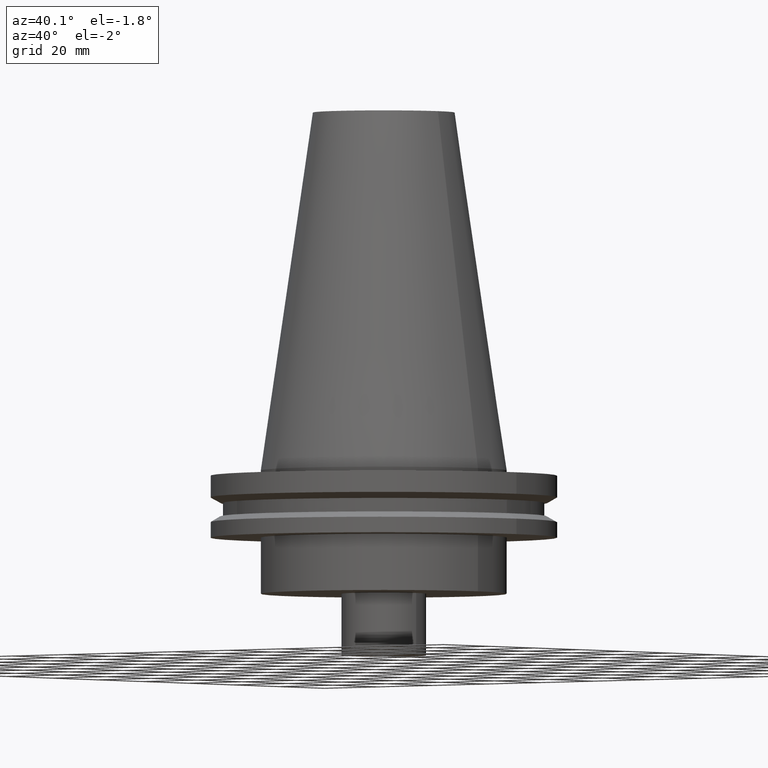
[diagram: clean part render]
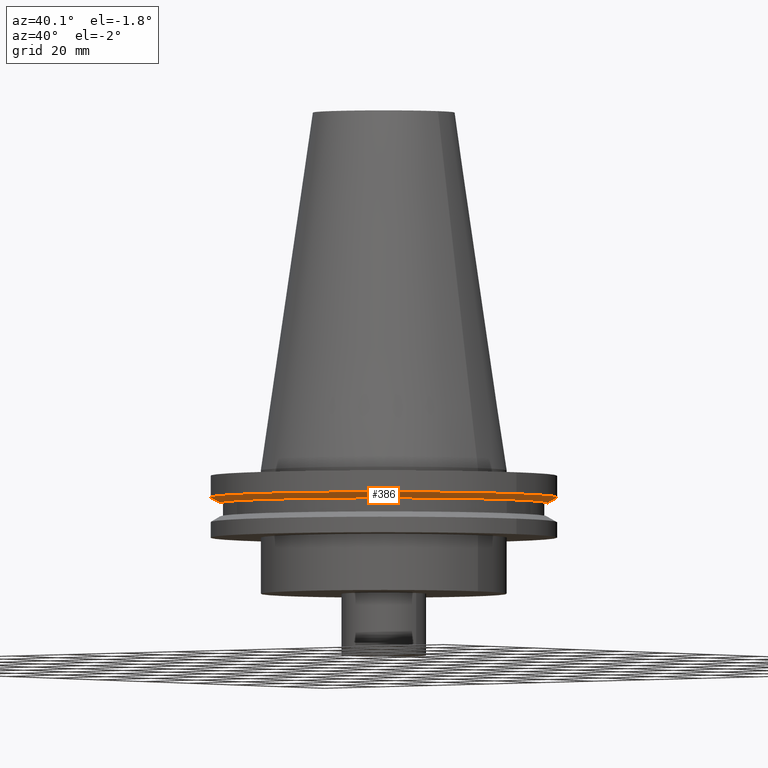
[diagram: same view with one face highlighted and labeled with its STEP entity id]
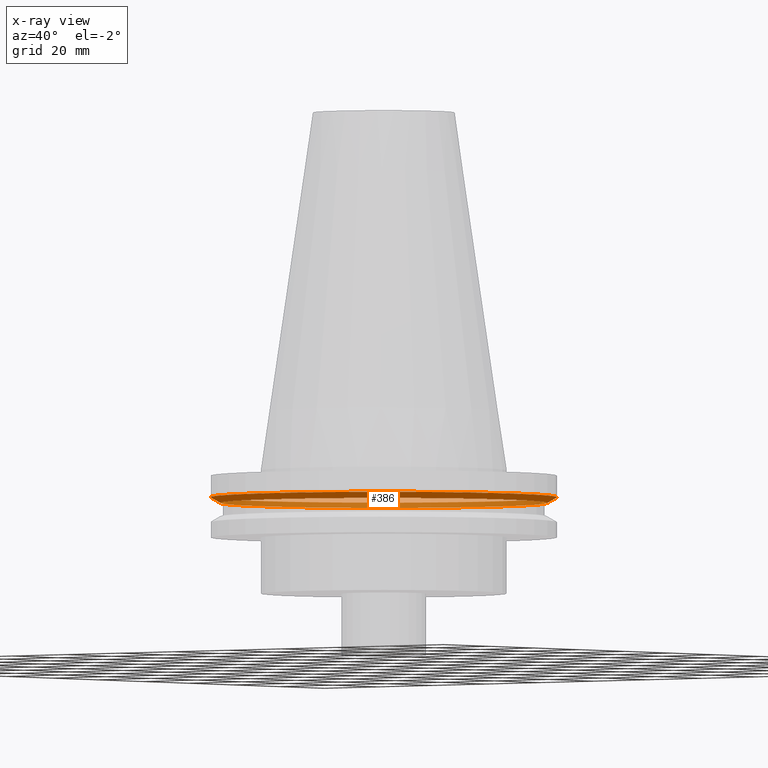
[diagram: x-ray of the same camera — body ghosted, the highlighted face saturated]
A machine part, auxiliary view. The second image highlights one B-rep face of the part: STEP entity #386.
The next image is the same camera in x-ray: the body ghosted, the highlighted face saturated — about 44% of this face is hidden behind the body in this view.
In plain terms, the highlighted conical surface has half-angle 60 deg.
Its self-contained STEP definition (entity closure, byte-faithful):
#27 = DIRECTION ( 'NONE',  ( -0.000000000000000000, -0.000000000000000000, 1.000000000000000000 ) ) ;
#35 = EDGE_CURVE ( 'NONE', #225, #225, #395, .T. ) ;
#41 = FACE_BOUND ( 'NONE', #323, .T. ) ;
#42 = CONICAL_SURFACE ( 'NONE', #61, 46.43919780457007818, 1.047197551196575205 ) ;
#43 = FACE_OUTER_BOUND ( 'NONE', #352, .T. ) ;
#45 = CARTESIAN_POINT ( 'NONE',  ( 49.21500000000000341, 0.000000000000000000, -7.602389855251287187 ) ) ;
#61 = AXIS2_PLACEMENT_3D ( 'NONE', #193, #285, #374 ) ;
#144 = CARTESIAN_POINT ( 'NONE',  ( 46.43919780457007818, 0.000000000000000000, -9.204999999999991189 ) ) ;
#152 = VERTEX_POINT ( 'NONE', #45 ) ;
#183 = CIRCLE ( 'NONE', #328, 49.21500000000000341 ) ;
#193 = CARTESIAN_POINT ( 'NONE',  ( 0.000000000000000000, 0.000000000000000000, -9.204999999999991189 ) ) ;
#207 = ORIENTED_EDGE ( 'NONE', *, *, #35, .T. ) ;
#225 = VERTEX_POINT ( 'NONE', #144 ) ;
#272 = CARTESIAN_POINT ( 'NONE',  ( 0.000000000000000000, 0.000000000000000000, -9.204999999999991189 ) ) ;
#275 = DIRECTION ( 'NONE',  ( 1.000000000000000000, 0.000000000000000000, 0.000000000000000000 ) ) ;
#278 = EDGE_CURVE ( 'NONE', #152, #152, #183, .T. ) ;
#285 = DIRECTION ( 'NONE',  ( -0.000000000000000000, -0.000000000000000000, 1.000000000000000000 ) ) ;
#300 = CARTESIAN_POINT ( 'NONE',  ( 0.000000000000000000, 0.000000000000000000, -7.602389855251287187 ) ) ;
#323 = EDGE_LOOP ( 'NONE', ( #207 ) ) ;
#328 = AXIS2_PLACEMENT_3D ( 'NONE', #300, #27, #275 ) ;
#348 = DIRECTION ( 'NONE',  ( 1.000000000000000000, 0.000000000000000000, 0.000000000000000000 ) ) ;
#352 = EDGE_LOOP ( 'NONE', ( #381 ) ) ;
#357 = AXIS2_PLACEMENT_3D ( 'NONE', #272, #389, #348 ) ;
#374 = DIRECTION ( 'NONE',  ( 1.000000000000000000, 0.000000000000000000, 0.000000000000000000 ) ) ;
#381 = ORIENTED_EDGE ( 'NONE', *, *, #278, .F. ) ;
#386 = ADVANCED_FACE ( 'NONE', ( #43, #41 ), #42, .T. ) ;
#389 = DIRECTION ( 'NONE',  ( -0.000000000000000000, -0.000000000000000000, 1.000000000000000000 ) ) ;
#395 = CIRCLE ( 'NONE', #357, 46.43919780457007818 ) ;